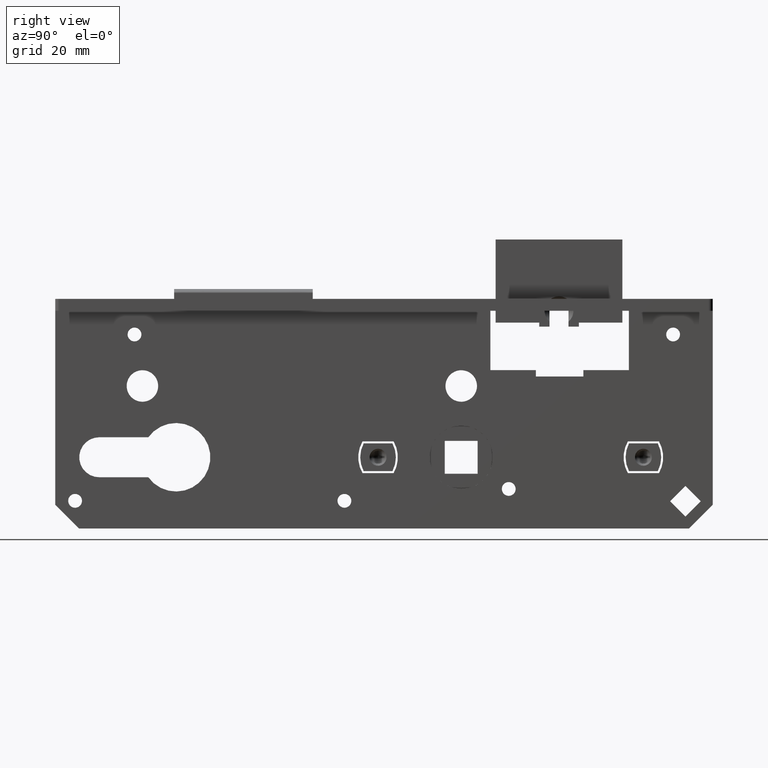
[diagram: clean part render]
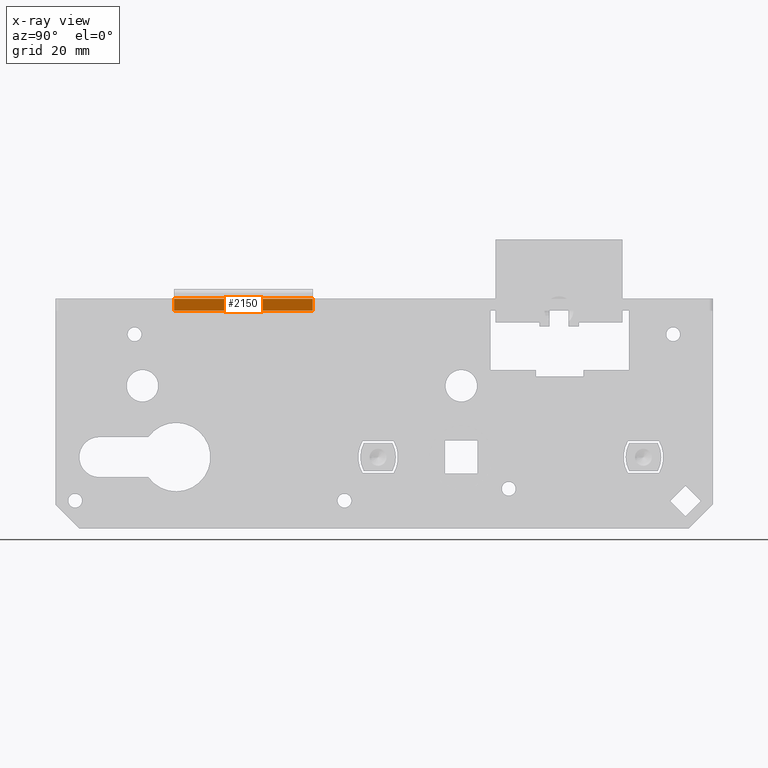
[diagram: x-ray — body ghosted, one internal face saturated and labeled with its STEP entity id]
A machine part, right view, then the same camera in x-ray: the body is ghosted and one INTERNAL B-rep face — a face not visible from any outside direction — is saturated and labeled: STEP entity #2150.
In plain terms, the highlighted planar face has unit normal (1, 0, 0).
Its self-contained STEP definition (entity closure, byte-faithful):
#2150 = ADVANCED_FACE ( 'NONE', ( #12137 ), #17574, .F. ) ;
#3027 = DIRECTION ( 'NONE',  ( -0.000000000000000000, 1.000000000000000000, -0.000000000000000000 ) ) ;
#3230 = EDGE_CURVE ( 'NONE', #17874, #18220, #19724, .T. ) ;
#3338 = VECTOR ( 'NONE', #3027, 1000.000000000000000 ) ;
#3458 = DIRECTION ( 'NONE',  ( -0.000000000000000000, -0.000000000000000000, 1.000000000000000000 ) ) ;
#3619 = ORIENTED_EDGE ( 'NONE', *, *, #21167, .T. ) ;
#4514 = VECTOR ( 'NONE', #13896, 1000.000000000000000 ) ;
#5768 = DIRECTION ( 'NONE',  ( 1.000000000000000000, 0.000000000000000000, 0.000000000000000000 ) ) ;
#5861 = ORIENTED_EDGE ( 'NONE', *, *, #10787, .F. ) ;
#6243 = ORIENTED_EDGE ( 'NONE', *, *, #9177, .F. ) ;
#6823 = CARTESIAN_POINT ( 'NONE',  ( 4.119999999999996554, -18.00500000000002032, -1.500000000000000000 ) ) ;
#7615 = VERTEX_POINT ( 'NONE', #15868 ) ;
#7929 = VECTOR ( 'NONE', #15462, 1000.000000000000000 ) ;
#9080 = LINE ( 'NONE', #19399, #4514 ) ;
#9177 = EDGE_CURVE ( 'NONE', #21922, #7615, #9080, .T. ) ;
#9461 = ORIENTED_EDGE ( 'NONE', *, *, #3230, .T. ) ;
#10040 = CARTESIAN_POINT ( 'NONE',  ( 4.119999999999995666, -53.00499999999996703, -1.500000000000000000 ) ) ;
#10787 = EDGE_CURVE ( 'NONE', #7615, #18220, #17152, .T. ) ;
#11933 = CARTESIAN_POINT ( 'NONE',  ( 4.119999999999996554, -18.00500000000002032, 1.500000000000000000 ) ) ;
#12068 = CARTESIAN_POINT ( 'NONE',  ( 4.119999999999996554, -18.00500000000002032, 1.500000000000000000 ) ) ;
#12137 = FACE_OUTER_BOUND ( 'NONE', #19501, .T. ) ;
#12550 = VECTOR ( 'NONE', #3458, 1000.000000000000000 ) ;
#13896 = DIRECTION ( 'NONE',  ( -0.000000000000000000, 1.000000000000000000, -0.000000000000000000 ) ) ;
#15462 = DIRECTION ( 'NONE',  ( -0.000000000000000000, -0.000000000000000000, 1.000000000000000000 ) ) ;
#15868 = CARTESIAN_POINT ( 'NONE',  ( 4.119999999999996554, -18.00500000000002032, -1.500000000000000000 ) ) ;
#17002 = CARTESIAN_POINT ( 'NONE',  ( 4.119999999999995666, -53.00499999999996703, 1.500000000000000000 ) ) ;
#17026 = LINE ( 'NONE', #10040, #12550 ) ;
#17152 = LINE ( 'NONE', #6823, #7929 ) ;
#17574 = PLANE ( 'NONE',  #19586 ) ;
#17723 = CARTESIAN_POINT ( 'NONE',  ( 4.119999999999996554, -18.00500000000002032, -1.500000000000000000 ) ) ;
#17874 = VERTEX_POINT ( 'NONE', #17002 ) ;
#18220 = VERTEX_POINT ( 'NONE', #12068 ) ;
#18352 = CARTESIAN_POINT ( 'NONE',  ( 4.119999999999995666, -53.00499999999996703, -1.500000000000000000 ) ) ;
#19282 = DIRECTION ( 'NONE',  ( 0.000000000000000000, 0.000000000000000000, -1.000000000000000000 ) ) ;
#19399 = CARTESIAN_POINT ( 'NONE',  ( 4.119999999999996554, -18.00500000000002032, -1.500000000000000000 ) ) ;
#19501 = EDGE_LOOP ( 'NONE', ( #9461, #5861, #6243, #3619 ) ) ;
#19586 = AXIS2_PLACEMENT_3D ( 'NONE', #17723, #5768, #19282 ) ;
#19724 = LINE ( 'NONE', #11933, #3338 ) ;
#21167 = EDGE_CURVE ( 'NONE', #21922, #17874, #17026, .T. ) ;
#21922 = VERTEX_POINT ( 'NONE', #18352 ) ;